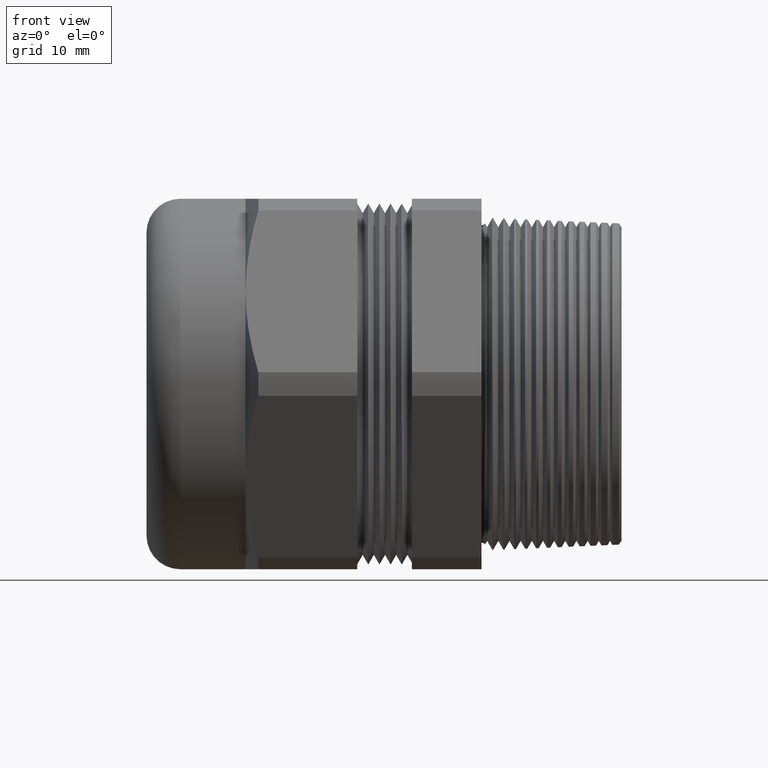
[diagram: clean part render]
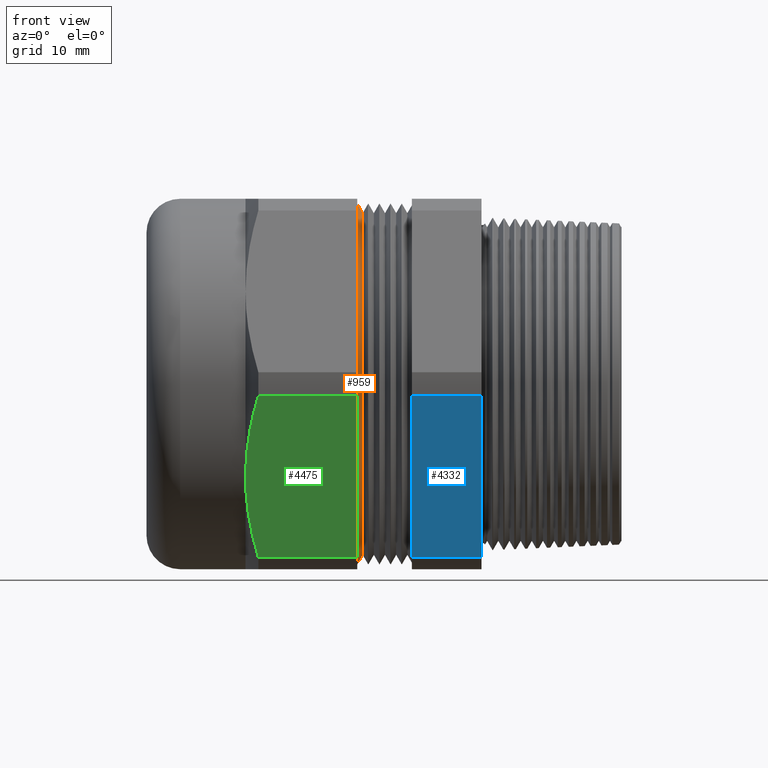
[diagram: same view with three faces highlighted in distinct colors, each labeled with its STEP entity id]
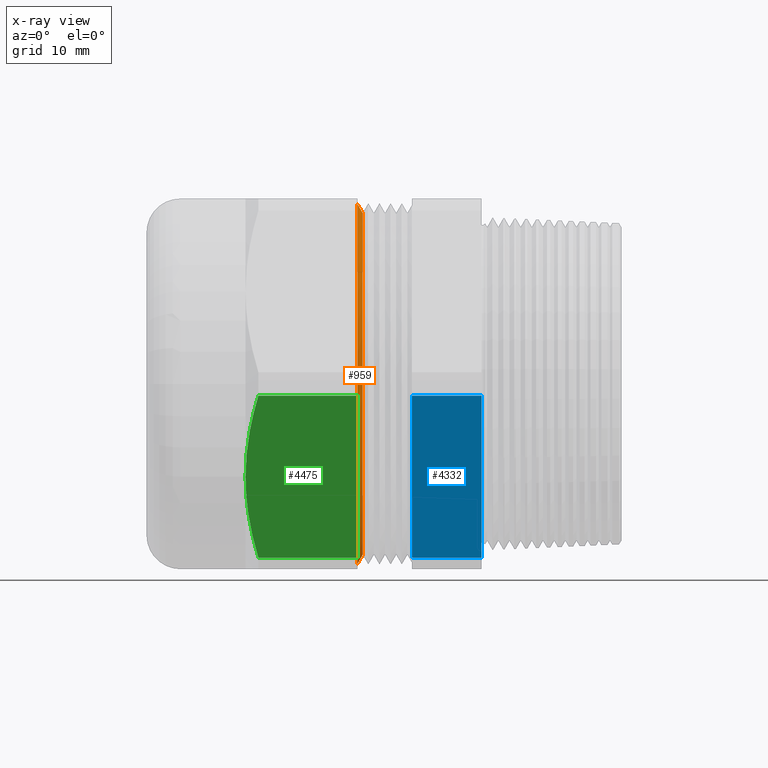
[diagram: x-ray of the same camera — body ghosted, the three highlighted faces saturated]
A machine part, front view with three faces highlighted in distinct colors.
The next image is the same camera in x-ray (body ghosted, the three faces saturated) — at least one of them is partly hidden behind the body in this view.
Their STEP definitions:

[orange] entity #959 — the highlighted conical surface has half-angle 60 deg.
#370 = VERTEX_POINT ( 'NONE', #1872 ) ;
#380 = EDGE_CURVE ( 'NONE', #370, #382, #1854, .T. ) ;
#381 = VERTEX_POINT ( 'NONE', #1850 ) ;
#382 = VERTEX_POINT ( 'NONE', #1849 ) ;
#395 = VERTEX_POINT ( 'NONE', #1888 ) ;
#398 = EDGE_CURVE ( 'NONE', #381, #395, #1887, .T. ) ;
#949 = ORIENTED_EDGE ( 'NONE', *, *, #965, .F. ) ;
#954 = EDGE_LOOP ( 'NONE', ( #955, #949, #997, #998 ) ) ;
#955 = ORIENTED_EDGE ( 'NONE', *, *, #380, .F. ) ;
#959 = ADVANCED_FACE ( 'NONE', ( #2992 ), #2991, .T. ) ;
#965 = EDGE_CURVE ( 'NONE', #381, #370, #2985, .T. ) ;
#997 = ORIENTED_EDGE ( 'NONE', *, *, #398, .T. ) ;
#998 = ORIENTED_EDGE ( 'NONE', *, *, #4399, .T. ) ;
#1849 = CARTESIAN_POINT ( 'NONE',  ( -0.7012500000000000400, 1.246200582812346700E-016, -1.017600000000000100 ) ) ;
#1850 = CARTESIAN_POINT ( 'NONE',  ( -0.6702500144537539800, 1.213322765741167400E-016, 0.9639064500000000800 ) ) ;
#1851 = DIRECTION ( 'NONE',  ( -0.4999999999999927800, 1.060575238724911800E-016, -0.8660254037844427000 ) ) ;
#1852 = VECTOR ( 'NONE', #1851, 39.37007874015748100 ) ;
#1853 = CARTESIAN_POINT ( 'NONE',  ( -0.7012500000000000400, 1.246200582812346700E-016, -1.017600000000000100 ) ) ;
#1854 = LINE ( 'NONE', #1853, #1852 ) ;
#1872 = CARTESIAN_POINT ( 'NONE',  ( -0.6702500144537539800, 0.0000000000000000000, -0.9639064500000000800 ) ) ;
#1884 = DIRECTION ( 'NONE',  ( -0.4999999999999927800, 0.0000000000000000000, 0.8660254037844427000 ) ) ;
#1885 = VECTOR ( 'NONE', #1884, 39.37007874015748100 ) ;
#1886 = CARTESIAN_POINT ( 'NONE',  ( -0.7012500000000000400, 0.0000000000000000000, 1.017600000000000100 ) ) ;
#1887 = LINE ( 'NONE', #1886, #1885 ) ;
#1888 = CARTESIAN_POINT ( 'NONE',  ( -0.7012500000000000400, 0.0000000000000000000, 1.017600000000000100 ) ) ;
#2980 = DIRECTION ( 'NONE',  ( 0.0000000000000000000, 0.0000000000000000000, -1.000000000000000000 ) ) ;
#2981 = DIRECTION ( 'NONE',  ( 1.000000000000000000, 0.0000000000000000000, 0.0000000000000000000 ) ) ;
#2984 = AXIS2_PLACEMENT_3D ( 'NONE', #2989, #2981, #2980 ) ;
#2985 = CIRCLE ( 'NONE', #2984, 0.9639064500000000800 ) ;
#2986 = DIRECTION ( 'NONE',  ( 0.0000000000000000000, 0.0000000000000000000, 1.000000000000000000 ) ) ;
#2987 = DIRECTION ( 'NONE',  ( -1.000000000000000000, 0.0000000000000000000, 0.0000000000000000000 ) ) ;
#2988 = AXIS2_PLACEMENT_3D ( 'NONE', #2990, #2987, #2986 ) ;
#2989 = CARTESIAN_POINT ( 'NONE',  ( -0.6702500144537539800, 0.0000000000000000000, 0.0000000000000000000 ) ) ;
#2990 = CARTESIAN_POINT ( 'NONE',  ( -0.7012500000000000400, 0.0000000000000000000, 0.0000000000000000000 ) ) ;
#2991 = CONICAL_SURFACE ( 'NONE', #2988, 1.017600000000000100, 1.047197551196606100 ) ;
#2992 = FACE_OUTER_BOUND ( 'NONE', #954, .T. ) ;
#3848 = DIRECTION ( 'NONE',  ( 0.0000000000000000000, 0.0000000000000000000, -1.000000000000000000 ) ) ;
#3849 = DIRECTION ( 'NONE',  ( 1.000000000000000000, 0.0000000000000000000, 0.0000000000000000000 ) ) ;
#3850 = CARTESIAN_POINT ( 'NONE',  ( -0.7012500000000000400, 0.0000000000000000000, 0.0000000000000000000 ) ) ;
#3851 = AXIS2_PLACEMENT_3D ( 'NONE', #3850, #3849, #3848 ) ;
#3852 = CIRCLE ( 'NONE', #3851, 1.017600000000000100 ) ;
#4399 = EDGE_CURVE ( 'NONE', #395, #382, #3852, .T. ) ;

[blue] entity #4332 — the highlighted planar face has unit normal (0, -0.866, -0.5).
#14 = EDGE_CURVE ( 'NONE', #17, #4154, #1229, .T. ) ;
#17 = VERTEX_POINT ( 'NONE', #1221 ) ;
#32 = VERTEX_POINT ( 'NONE', #1251 ) ;
#37 = EDGE_CURVE ( 'NONE', #32, #4159, #1297, .T. ) ;
#164 = EDGE_CURVE ( 'NONE', #17, #32, #1523, .T. ) ;
#1221 = CARTESIAN_POINT ( 'NONE',  ( -0.3930348258706468100, -1.168535519404734900, -0.06603710994211120500 ) ) ;
#1226 = DIRECTION ( 'NONE',  ( 1.000000000000000000, 0.0000000000000000000, 0.0000000000000000000 ) ) ;
#1227 = VECTOR ( 'NONE', #1226, 39.37007874015748100 ) ;
#1228 = CARTESIAN_POINT ( 'NONE',  ( -4.674745017870971100, -1.168535519404734900, -0.06603710994211120500 ) ) ;
#1229 = LINE ( 'NONE', #1228, #1227 ) ;
#1251 = CARTESIAN_POINT ( 'NONE',  ( -0.3930348258706468100, -0.6414575745047412800, -0.9789628900578889500 ) ) ;
#1294 = DIRECTION ( 'NONE',  ( 1.000000000000000000, 0.0000000000000000000, 0.0000000000000000000 ) ) ;
#1295 = VECTOR ( 'NONE', #1294, 39.37007874015748100 ) ;
#1296 = CARTESIAN_POINT ( 'NONE',  ( -4.674745017870971100, -0.6414575745047412800, -0.9789628900578889500 ) ) ;
#1297 = LINE ( 'NONE', #1296, #1295 ) ;
#1517 = DIRECTION ( 'NONE',  ( 0.0000000000000000000, 0.5000000000000002200, -0.8660254037844386000 ) ) ;
#1518 = VECTOR ( 'NONE', #1517, 39.37007874015747400 ) ;
#1519 = CARTESIAN_POINT ( 'NONE',  ( -0.3930348258706468100, -0.6505965469547382300, -0.9631337254455226700 ) ) ;
#1523 = LINE ( 'NONE', #1519, #1518 ) ;
#3458 = DIRECTION ( 'NONE',  ( 0.0000000000000000000, 0.5000000000000001100, -0.8660254037844386000 ) ) ;
#3459 = VECTOR ( 'NONE', #3458, 39.37007874015748900 ) ;
#3460 = CARTESIAN_POINT ( 'NONE',  ( 0.0000000000000000000, -1.168535519404734900, -0.06603710994211120500 ) ) ;
#3461 = LINE ( 'NONE', #3460, #3459 ) ;
#3463 = CARTESIAN_POINT ( 'NONE',  ( 0.0000000000000000000, -1.168535519404734900, -0.06603710994211120500 ) ) ;
#3513 = CARTESIAN_POINT ( 'NONE',  ( 0.0000000000000000000, -0.6414575745047412800, -0.9789628900578889500 ) ) ;
#3804 = DIRECTION ( 'NONE',  ( 0.0000000000000000000, 0.5000000000000001100, -0.8660254037844386000 ) ) ;
#3805 = DIRECTION ( 'NONE',  ( 0.0000000000000000000, -0.8660254037844386000, -0.5000000000000001100 ) ) ;
#3806 = CARTESIAN_POINT ( 'NONE',  ( -4.674745017870971100, -1.168535519404734900, -0.06603710994211120500 ) ) ;
#3807 = AXIS2_PLACEMENT_3D ( 'NONE', #3806, #3805, #3804 ) ;
#3808 = PLANE ( 'NONE',  #3807 ) ;
#3811 = FACE_OUTER_BOUND ( 'NONE', #4324, .T. ) ;
#4154 = VERTEX_POINT ( 'NONE', #3463 ) ;
#4156 = EDGE_CURVE ( 'NONE', #4154, #4159, #3461, .T. ) ;
#4159 = VERTEX_POINT ( 'NONE', #3513 ) ;
#4320 = ORIENTED_EDGE ( 'NONE', *, *, #37, .T. ) ;
#4321 = ORIENTED_EDGE ( 'NONE', *, *, #4156, .F. ) ;
#4322 = ORIENTED_EDGE ( 'NONE', *, *, #14, .F. ) ;
#4324 = EDGE_LOOP ( 'NONE', ( #4327, #4320, #4321, #4322 ) ) ;
#4327 = ORIENTED_EDGE ( 'NONE', *, *, #164, .T. ) ;
#4332 = ADVANCED_FACE ( 'NONE', ( #3811 ), #3808, .T. ) ;

[green] entity #4475 — the highlighted planar face has unit normal (0, -0.866, -0.5).
#19 = ORIENTED_EDGE ( 'NONE', *, *, #707, .T. ) ;
#20 = EDGE_CURVE ( 'NONE', #24, #600, #1214, .T. ) ;
#21 = ORIENTED_EDGE ( 'NONE', *, *, #20, .T. ) ;
#22 = EDGE_CURVE ( 'NONE', #587, #565, #1271, .T. ) ;
#23 = ORIENTED_EDGE ( 'NONE', *, *, #22, .T. ) ;
#24 = VERTEX_POINT ( 'NONE', #1261 ) ;
#25 = EDGE_CURVE ( 'NONE', #580, #24, #1260, .T. ) ;
#27 = ORIENTED_EDGE ( 'NONE', *, *, #577, .F. ) ;
#28 = ORIENTED_EDGE ( 'NONE', *, *, #25, .T. ) ;
#565 = VERTEX_POINT ( 'NONE', #2222 ) ;
#577 = EDGE_CURVE ( 'NONE', #580, #565, #2199, .T. ) ;
#580 = VERTEX_POINT ( 'NONE', #2252 ) ;
#587 = VERTEX_POINT ( 'NONE', #2240 ) ;
#600 = VERTEX_POINT ( 'NONE', #2286 ) ;
#707 = EDGE_CURVE ( 'NONE', #600, #587, #2457, .T. ) ;
#1210 = CARTESIAN_POINT ( 'NONE',  ( -1.329211196312532800, -0.8605971030938564000, -0.5994020925948495600 ) ) ;
#1211 = CARTESIAN_POINT ( 'NONE',  ( -1.330843233864887900, -0.8828306086837499600, -0.5608925312827867100 ) ) ;
#1212 = CARTESIAN_POINT ( 'NONE',  ( -1.331250000000000500, -0.8939247933331229100, -0.5416768398015219300 ) ) ;
#1213 = CARTESIAN_POINT ( 'NONE',  ( -1.331250000000000300, -0.9049965469547383000, -0.5225000000000006300 ) ) ;
#1214 = B_SPLINE_CURVE_WITH_KNOTS ( 'NONE', 3,
 ( #1213, #1212, #1211, #1210, #1268, #1267, #1266, #1265, #1264, #1263 ),
 .UNSPECIFIED., .F., .F.,
 ( 4, 2, 2, 2, 4 ),
 ( 0.01350892317937171600, 0.01518608892047185400, 0.01686325466157199300, 0.02021758614377227500, 0.02692624910817284500 ),
 .UNSPECIFIED. ) ;
#1252 = CARTESIAN_POINT ( 'NONE',  ( -1.331250000000000300, -0.9049965469547383000, -0.5225000000000006300 ) ) ;
#1253 = CARTESIAN_POINT ( 'NONE',  ( -1.331250000000000700, -0.9495851201317056000, -0.4452703258204898100 ) ) ;
#1254 = CARTESIAN_POINT ( 'NONE',  ( -1.324572485262369300, -0.9938054632484371000, -0.3686784448141815500 ) ) ;
#1255 = CARTESIAN_POINT ( 'NONE',  ( -1.299614570445702500, -1.081606310958731300, -0.2166029156323350800 ) ) ;
#1256 = CARTESIAN_POINT ( 'NONE',  ( -1.281390332025216000, -1.125189912574422500, -0.1411139032571168400 ) ) ;
#1257 = CARTESIAN_POINT ( 'NONE',  ( -1.258850276243621600, -1.168535519404734900, -0.06603710994211119100 ) ) ;
#1260 = B_SPLINE_CURVE_WITH_KNOTS ( 'NONE', 3,
 ( #1257, #1256, #1255, #1254, #1253, #1252 ),
 .UNSPECIFIED., .F., .F.,
 ( 4, 2, 4 ),
 ( 2.361307452613130900E-007, 0.006754579655058489400, 0.01350892317937171600 ),
 .UNSPECIFIED. ) ;
#1261 = CARTESIAN_POINT ( 'NONE',  ( -1.331250000000000300, -0.9049965469547383000, -0.5225000000000006300 ) ) ;
#1262 = DIRECTION ( 'NONE',  ( 0.0000000000000000000, -0.5000000000000002200, 0.8660254037844386000 ) ) ;
#1263 = CARTESIAN_POINT ( 'NONE',  ( -1.258850276243621600, -0.6414575745047412800, -0.9789628900578889500 ) ) ;
#1264 = CARTESIAN_POINT ( 'NONE',  ( -1.281283844589602000, -0.6845984008961342200, -0.9042407868674884300 ) ) ;
#1265 = CARTESIAN_POINT ( 'NONE',  ( -1.299506375669675000, -0.7280841328653018300, -0.8289212896925680600 ) ) ;
#1266 = CARTESIAN_POINT ( 'NONE',  ( -1.318280434585773900, -0.7940138172953711300, -0.7147277265327050000 ) ) ;
#1267 = CARTESIAN_POINT ( 'NONE',  ( -1.323111113761380700, -0.8161072852860661300, -0.6764607174574242000 ) ) ;
#1268 = CARTESIAN_POINT ( 'NONE',  ( -1.327982786052546600, -0.8494419584415945400, -0.6187233698983475300 ) ) ;
#1269 = VECTOR ( 'NONE', #1262, 39.37007874015747400 ) ;
#1270 = CARTESIAN_POINT ( 'NONE',  ( -0.7012500000000001500, -0.6505965469547382300, -0.9631337254455226700 ) ) ;
#1271 = LINE ( 'NONE', #1270, #1269 ) ;
#2197 = VECTOR ( 'NONE', #2258, 39.37007874015748100 ) ;
#2198 = CARTESIAN_POINT ( 'NONE',  ( -4.674745017870971100, -1.168535519404734900, -0.06603710994211120500 ) ) ;
#2199 = LINE ( 'NONE', #2198, #2197 ) ;
#2222 = CARTESIAN_POINT ( 'NONE',  ( -0.7012500000000000400, -1.168535519404734900, -0.06603710994211120500 ) ) ;
#2240 = CARTESIAN_POINT ( 'NONE',  ( -0.7012500000000000400, -0.6414575745047412800, -0.9789628900578889500 ) ) ;
#2252 = CARTESIAN_POINT ( 'NONE',  ( -1.258850276243621600, -1.168535519404734900, -0.06603710994211119100 ) ) ;
#2258 = DIRECTION ( 'NONE',  ( 1.000000000000000000, 0.0000000000000000000, 0.0000000000000000000 ) ) ;
#2286 = CARTESIAN_POINT ( 'NONE',  ( -1.258850276243621600, -0.6414575745047412800, -0.9789628900578889500 ) ) ;
#2454 = DIRECTION ( 'NONE',  ( 1.000000000000000000, 0.0000000000000000000, 0.0000000000000000000 ) ) ;
#2455 = VECTOR ( 'NONE', #2454, 39.37007874015748100 ) ;
#2456 = CARTESIAN_POINT ( 'NONE',  ( -4.674745017870971100, -0.6414575745047412800, -0.9789628900578889500 ) ) ;
#2457 = LINE ( 'NONE', #2456, #2455 ) ;
#3973 = PLANE ( 'NONE',  #4023 ) ;
#3974 = FACE_OUTER_BOUND ( 'NONE', #4476, .T. ) ;
#4020 = DIRECTION ( 'NONE',  ( 0.0000000000000000000, 0.5000000000000001100, -0.8660254037844386000 ) ) ;
#4021 = DIRECTION ( 'NONE',  ( 0.0000000000000000000, -0.8660254037844386000, -0.5000000000000001100 ) ) ;
#4022 = CARTESIAN_POINT ( 'NONE',  ( -4.674745017870971100, -1.168535519404734900, -0.06603710994211120500 ) ) ;
#4023 = AXIS2_PLACEMENT_3D ( 'NONE', #4022, #4021, #4020 ) ;
#4475 = ADVANCED_FACE ( 'NONE', ( #3974 ), #3973, .T. ) ;
#4476 = EDGE_LOOP ( 'NONE', ( #27, #28, #21, #19, #23 ) ) ;